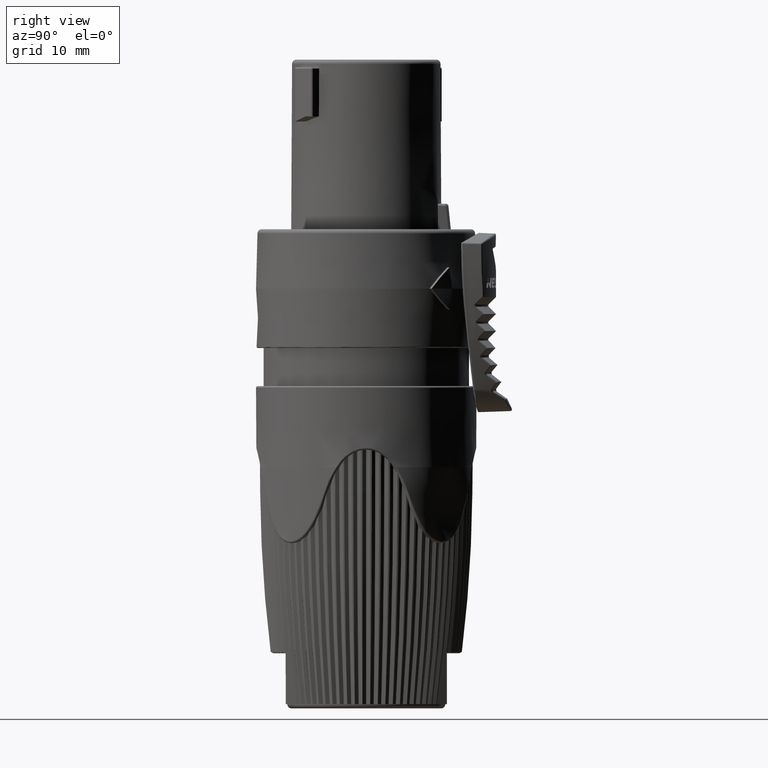
[diagram: clean part render]
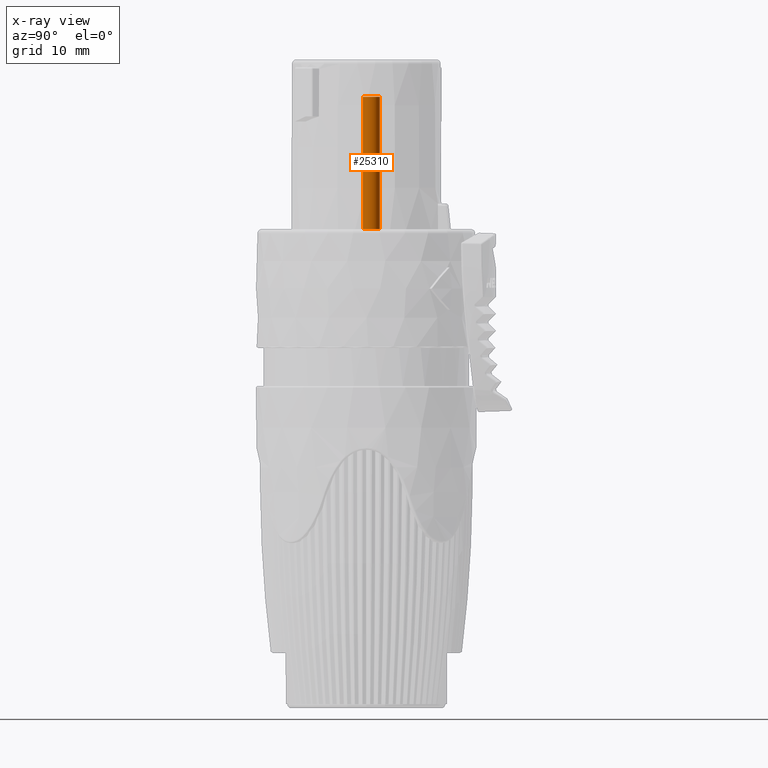
[diagram: x-ray — body ghosted, one internal face saturated and labeled with its STEP entity id]
A machine part, right view, then the same camera in x-ray: the body is ghosted and one INTERNAL B-rep face — a face not visible from any outside direction — is saturated and labeled: STEP entity #25310.
In plain terms, the highlighted cylindrical surface (edge-blend (fillet) strip) has radius 1 mm, axis along (0, 0, -1).
Its self-contained STEP definition (entity closure, byte-faithful):
#4678=CARTESIAN_POINT('',(6.973362886642E0,6.100901992336E-1,2.91E1));
#4679=DIRECTION('',(0.E0,0.E0,-1.E0));
#4680=DIRECTION('',(0.E0,1.E0,0.E0));
#4681=AXIS2_PLACEMENT_3D('',#4678,#4679,#4680);
#4896=CARTESIAN_POINT('',(6.973362886642E0,6.100901992336E-1,1.35E1));
#4897=DIRECTION('',(0.E0,0.E0,-1.E0));
#4898=DIRECTION('',(0.E0,1.E0,0.E0));
#4899=AXIS2_PLACEMENT_3D('',#4896,#4897,#4898);
#4901=DIRECTION('',(0.E0,0.E0,-1.E0));
#4902=VECTOR('',#4901,1.56E1);
#4903=CARTESIAN_POINT('',(6.973362886642E0,1.610090199234E0,2.91E1));
#4904=LINE('',#4903,#4902);
#4910=DIRECTION('',(0.E0,0.E0,-1.E0));
#4911=VECTOR('',#4910,1.56E1);
#4912=CARTESIAN_POINT('',(6.973362886642E0,-3.899098007664E-1,2.91E1));
#4913=LINE('',#4912,#4911);
#16818=CARTESIAN_POINT('',(6.973362886642E0,1.610090199234E0,2.91E1));
#16819=CARTESIAN_POINT('',(6.973362886642E0,-3.899098007664E-1,2.91E1));
#16820=VERTEX_POINT('',#16818);
#16821=VERTEX_POINT('',#16819);
#16994=CARTESIAN_POINT('',(6.973362886642E0,1.610090199234E0,1.35E1));
#16995=CARTESIAN_POINT('',(6.973362886642E0,-3.899098007664E-1,1.35E1));
#16996=VERTEX_POINT('',#16994);
#16997=VERTEX_POINT('',#16995);
#25297=CARTESIAN_POINT('',(6.973362886642E0,6.100901992336E-1,2.91E1));
#25298=DIRECTION('',(0.E0,0.E0,-1.E0));
#25299=DIRECTION('',(0.E0,1.E0,0.E0));
#25300=AXIS2_PLACEMENT_3D('',#25297,#25298,#25299);
#25301=CYLINDRICAL_SURFACE('',#25300,1.E0);
#25302=ORIENTED_EDGE('',*,*,#22863,.T.);
#25304=ORIENTED_EDGE('',*,*,#25303,.F.);
#25305=ORIENTED_EDGE('',*,*,#25145,.F.);
#25307=ORIENTED_EDGE('',*,*,#25306,.T.);
#25308=EDGE_LOOP('',(#25302,#25304,#25305,#25307));
#25309=FACE_OUTER_BOUND('',#25308,.F.);
#25310=ADVANCED_FACE('',(#25309),#25301,.T.);
#4682=CIRCLE('',#4681,1.E0);
#4900=CIRCLE('',#4899,1.E0);
#22863=EDGE_CURVE('',#16996,#16997,#4900,.T.);
#25145=EDGE_CURVE('',#16820,#16821,#4682,.T.);
#25303=EDGE_CURVE('',#16821,#16997,#4913,.T.);
#25306=EDGE_CURVE('',#16820,#16996,#4904,.T.);